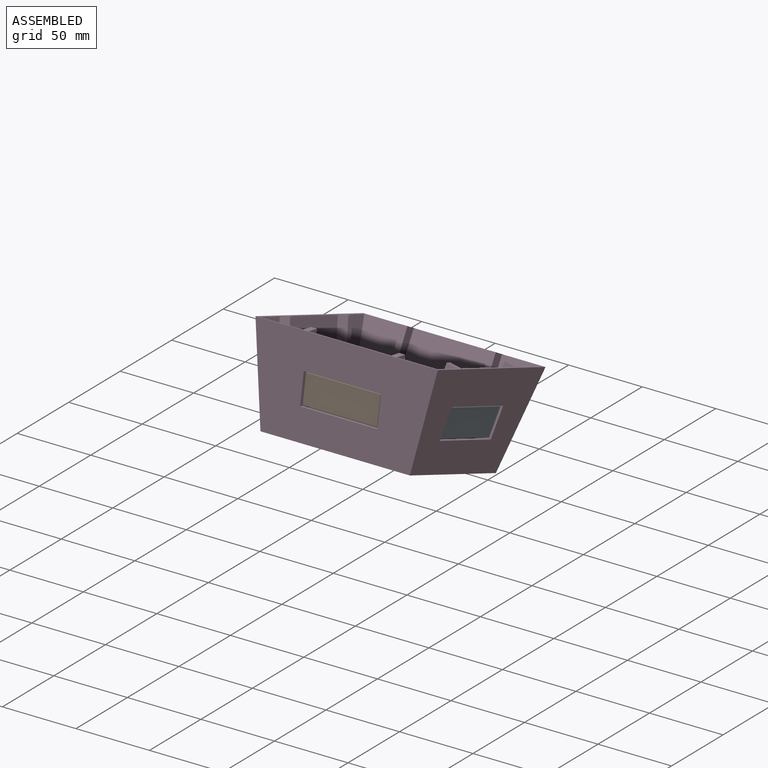
[diagram: assembled view]
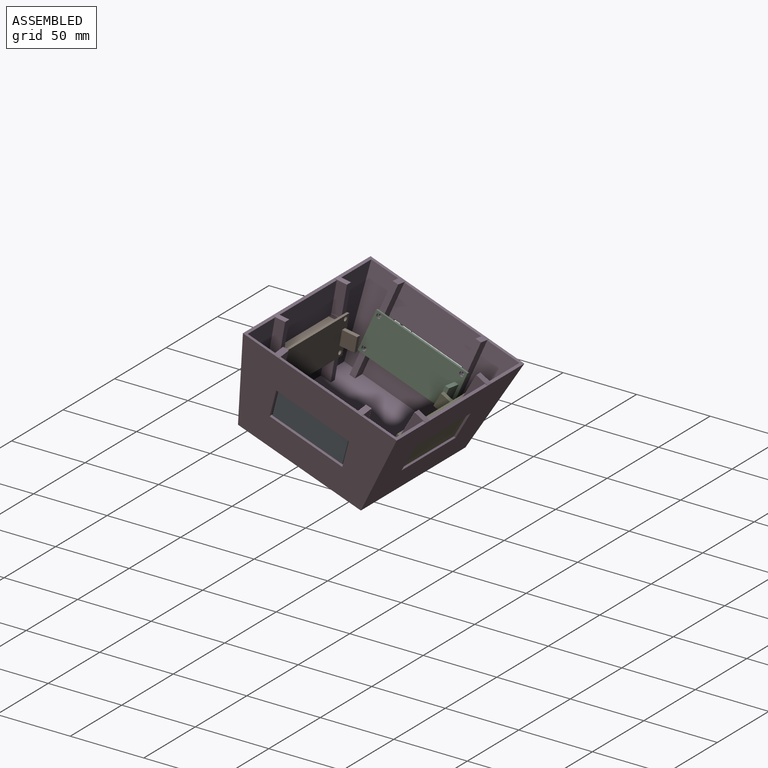
[diagram: assembled view, second angle]
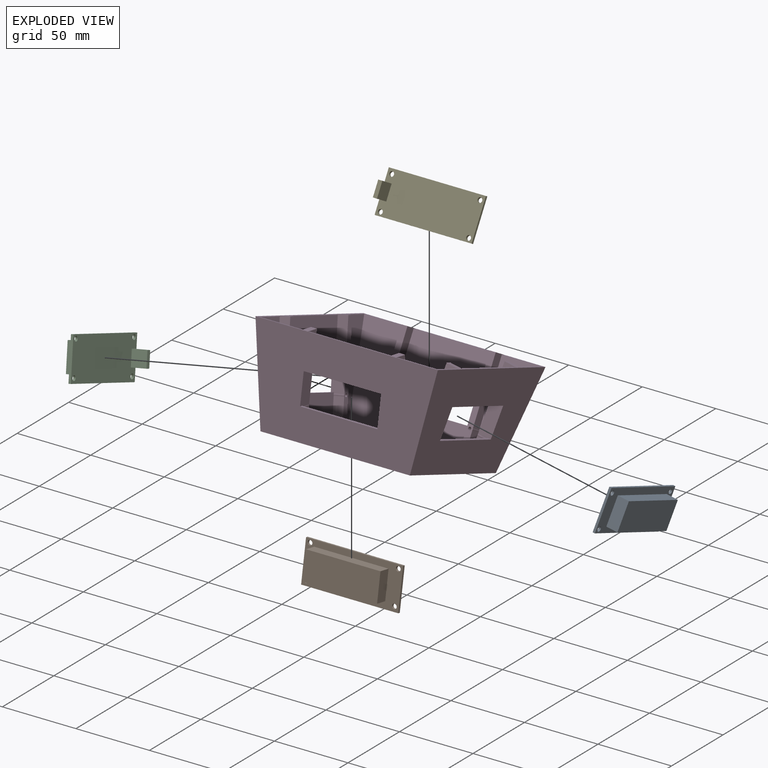
[diagram: exploded view]
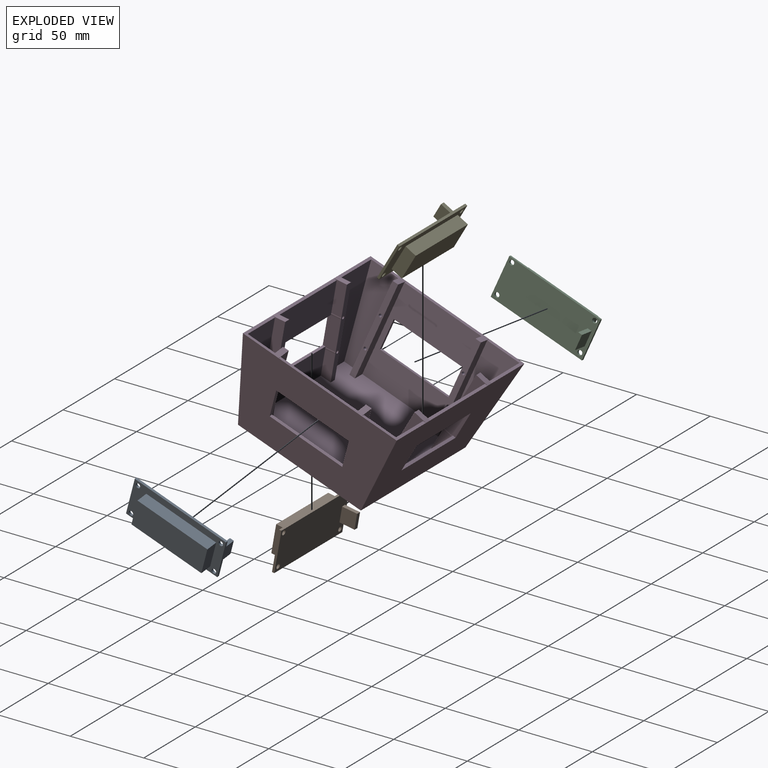
[diagram: exploded view, second angle]
ASSEMBLY  parts=5 mates=4
PART A: 20 faces, bbox 66x27.7x20 mm
  f0: plane 66x27.7mm, normal (0,0,-1), area 1766.9mm2, adj f6,f7,f8,f9,f10,f11,f12,f13
  f1: plane 50.6x8mm, normal (0,1,0), area 404.8mm2, adj f2,f4,f5,f14
  f2: plane 19x8mm, normal (-1,0,0), area 152mm2, adj f1,f3,f5,f14
  f3: plane 50.6x8mm, normal (0,-1,0), area 404.8mm2, adj f2,f4,f5,f14
  f4: plane 19x8mm, normal (1,0,0), area 152mm2, adj f1,f3,f5,f14
  f5: plane 50.6x19mm, normal (0,0,1), area 961.4mm2, adj f1,f2,f3,f4
  f6: plane 27.7x1.6mm, normal (-1,0,0), area 44.3mm2, adj f0,f7,f12,f14
  f7: plane 66x1.6mm, normal (0,-1,0), area 105.6mm2, adj f0,f6,f8,f14
  f8: plane 27.7x1.6mm, normal (1,0,0), area 44.3mm2, adj f0,f7,f12,f14
  f9: cylinder r=1.6mm len=3.2mm, axis (0,0,-1), area 16.1mm2, adj f0,f14
  f10: cylinder r=1.6mm len=3.2mm, axis (0,0,-1), area 16.1mm2, adj f0,f14
  f11: cylinder r=1.6mm len=3.2mm, axis (0,0,-1), area 16.1mm2, adj f0,f14
  f12: plane 66x1.6mm, normal (0,1,0), area 105.6mm2, adj f0,f6,f8,f14
  f13: cylinder r=1.6mm len=3.2mm, axis (0,0,-1), area 16.1mm2, adj f0,f14
  f14: plane 66x27.7mm, normal (0,0,1), area 834.6mm2, adj f1,f2,f3,f4,f6,f7,f8,f9
  f15: plane 10.4x2.8mm, normal (0,1,0), area 29.1mm2, adj f0,f16,f18,f19
  f16: plane 10.4x10.4mm, normal (-1,0,0), area 108.2mm2, adj f0,f15,f17,f19
  f17: plane 10.4x2.8mm, normal (0,-1,0), area 29.1mm2, adj f0,f16,f18,f19
  f18: plane 10.4x10.4mm, normal (1,0,0), area 108.2mm2, adj f0,f15,f17,f19
  f19: plane 10.4x2.8mm, normal (0,0,-1), area 29.1mm2, adj f15,f16,f17,f18
PART B: same geometry as A
PART C: same geometry as A
PART D: 170 faces, bbox 124x111.3x65.1 mm
  f0: plane 98.24x85.54mm, normal (0,0,-1), area 8176.7mm2, adj f2,f4,f5,f8,f11,f13,f14,f16
  f1: plane 56x2.03mm, normal (0,0,-1), area 113.7mm2, adj f2,f20,f136,f148
  f2: plane 61.5x56mm, normal (-0.98,0,-0.17), area 2413.6mm2, adj f0,f1,f135,f136,f139,f140,f141,f148
  f3: plane 31.59x25.35mm, normal (0,0,-1), area 111.5mm2, adj f4,f15,f20,f25,f32,f137
  f4: plane 61.5x23.32mm, normal (-0.98,0,-0.17), area 1117.6mm2, adj f0,f3,f25,f137,f138,f143,f144,f145
  f5: plane 61.5x56mm, normal (0.98,0,-0.17), area 2413.6mm2, adj f0,f9,f104,f105,f106,f107,f108,f110
  f6: plane 111.29x63.5mm, normal (-0.98,0,0.17), area 5371.3mm2, adj f7,f9,f15,f17,f19,f21,f109,f121
  f7: plane 28.41x21.95mm, normal (0,0,-1), area 98.1mm2, adj f6,f8,f19,f23,f76,f111
  f8: plane 61.5x19.92mm, normal (0.98,0,-0.17), area 905mm2, adj f0,f7,f23,f111,f113,f117,f118,f119
  f9: plane 56x2.03mm, normal (0,0,-1), area 113.7mm2, adj f5,f6,f104,f110
  f10: plane 56x2.03mm, normal (0,0,-1), area 113.7mm2, adj f11,f19,f63,f77
  f11: plane 61.5x56mm, normal (0,0.98,-0.17), area 2413.6mm2, adj f0,f10,f63,f66,f67,f72,f73,f77
  f12: plane 31.59x21.95mm, normal (0,0,-1), area 104.6mm2, adj f13,f19,f20,f24,f64,f147
  f13: plane 61.5x29.56mm, normal (0,0.98,-0.17), area 1507.4mm2, adj f0,f12,f24,f64,f65,f69,f70,f71
  f14: plane 61.5x56mm, normal (0,-0.98,-0.17), area 2413.6mm2, adj f0,f18,f26,f27,f28,f33,f34,f39
  f15: plane 123.99x63.5mm, normal (0,0.98,0.17), area 6190.2mm2, adj f3,f6,f17,f18,f20,f21,f37,f49
  f16: plane 61.5x26.38mm, normal (0,-0.98,-0.17), area 1308.3mm2, adj f0,f17,f22,f40,f44,f45,f46,f48
  f17: plane 28.41x25.35mm, normal (0,0,-1), area 105mm2, adj f6,f15,f16,f22,f40,f103
  f18: plane 56x2.03mm, normal (0,0,-1), area 113.7mm2, adj f14,f15,f33,f39
  f19: plane 123.99x63.5mm, normal (0,-0.98,0.17), area 6190.2mm2, adj f6,f7,f10,f12,f20,f21,f68,f82
  f20: plane 111.29x63.5mm, normal (0.98,0,0.17), area 5371.3mm2, adj f1,f3,f12,f15,f19,f21,f142,f154
  f21: plane 101.6x88.9mm, normal (0,0,1), area 9032.2mm2, adj f6,f15,f19,f20
  f22: plane 61.5x23.32mm, normal (0.98,0,-0.17), area 1117.6mm2, adj f0,f16,f17,f99,f100,f101,f102,f103
  f23: plane 61.5x26.38mm, normal (0,0.98,-0.17), area 1308.3mm2, adj f0,f7,f8,f75,f76,f79,f80,f81
  f24: plane 61.5x19.92mm, normal (-0.98,0,-0.17), area 905mm2, adj f0,f12,f13,f147,f150,f151,f152,f153
  f25: plane 61.5x29.56mm, normal (0,-0.98,-0.17), area 1507.4mm2, adj f0,f3,f4,f29,f30,f31,f32,f35
  f26: cylinder r=2.1mm len=7.11mm, axis (0,0.98,0.17), area 8.9mm2, adj f14,f27,f33,f36
  f27: plane 22.15x10.58mm, normal (-1,0,0), area 148.8mm2, adj f14,f26,f28,f36
  f28: cylinder r=2.1mm len=7.11mm, axis (0,0.98,0.17), area 8.9mm2, adj f14,f27,f34,f36
  f29: cylinder r=2.1mm len=7.11mm, axis (0,0.98,0.17), area 8.9mm2, adj f25,f30,f35,f36
  f30: plane 22.15x10.58mm, normal (1,0,0), area 148.8mm2, adj f25,f29,f31,f36
  f31: cylinder r=2.1mm len=7.11mm, axis (0,0.98,0.17), area 8.9mm2, adj f25,f30,f32,f36
  f32: plane 22.65x12.64mm, normal (1,0,0), area 152.7mm2, adj f3,f25,f31,f36,f37
  f33: plane 22.65x12.64mm, normal (-1,0,0), area 152.7mm2, adj f14,f18,f26,f36,f37
  f34: plane 18.23x10.11mm, normal (-1,0,0), area 125.3mm2, adj f0,f14,f28,f36
  f35: plane 18.23x10.11mm, normal (1,0,0), area 125.3mm2, adj f0,f25,f29,f36
  f36: plane 63.06x11.12mm, normal (0,-0.98,-0.17), area 250.2mm2, adj f0,f26,f27,f28,f29,f30,f31,f32
  f37: plane 8.86x4mm, normal (0,0.17,-0.98), area 36mm2, adj f15,f32,f33,f36
  f38: plane 63.06x11.12mm, normal (0,-0.98,-0.17), area 250.2mm2, adj f0,f39,f40,f41,f42,f43,f44,f45
  f39: plane 22.65x12.64mm, normal (1,0,0), area 152.7mm2, adj f14,f18,f38,f43,f49
  f40: plane 22.65x12.64mm, normal (-1,0,0), area 152.7mm2, adj f16,f17,f38,f44,f49
  f41: cylinder r=2.1mm len=7.11mm, axis (0,0.98,0.17), area 8.9mm2, adj f14,f38,f42,f47
  f42: plane 22.15x10.58mm, normal (1,0,0), area 148.8mm2, adj f14,f38,f41,f43
  f43: cylinder r=2.1mm len=7.11mm, axis (0,0.98,0.17), area 8.9mm2, adj f14,f38,f39,f42
  f44: cylinder r=2.1mm len=7.11mm, axis (0,0.98,0.17), area 8.9mm2, adj f16,f38,f40,f45
  f45: plane 22.15x10.58mm, normal (-1,0,0), area 148.8mm2, adj f16,f38,f44,f46
  f46: cylinder r=2.1mm len=7.11mm, axis (0,0.98,0.17), area 8.9mm2, adj f16,f38,f45,f48
  f47: plane 18.23x10.11mm, normal (1,0,0), area 125.3mm2, adj f0,f14,f38,f41
  f48: plane 18.23x10.11mm, normal (-1,0,0), area 125.3mm2, adj f0,f16,f38,f46
  f49: plane 8.86x4mm, normal (0,0.17,-0.98), area 36mm2, adj f15,f38,f39,f40
  f50: plane 20.65x5.55mm, normal (1,0,0), area 41.2mm2, adj f14,f15,f51,f53
  f51: plane 52.53x1.97mm, normal (0,0.17,-0.98), area 105.1mm2, adj f14,f15,f50,f52
  f52: plane 20.65x5.55mm, normal (-1,0,0), area 41.2mm2, adj f14,f15,f51,f53
  f53: plane 52.53x1.97mm, normal (0,-0.17,0.98), area 105.1mm2, adj f14,f15,f50,f52
  f54: cylinder r=1mm len=5.27mm, axis (0,0.98,0.17), area 31.4mm2, adj f38,f55
  f55: plane 2x1.97mm, normal (0,-0.98,-0.17), area 3.1mm2, adj f54
  f56: cylinder r=1mm len=5.27mm, axis (0,0.98,0.17), area 31.4mm2, adj f38,f57
  f57: plane 2x1.97mm, normal (0,-0.98,-0.17), area 3.1mm2, adj f56
  f58: cylinder r=1mm len=5.27mm, axis (0,0.98,0.17), area 31.4mm2, adj f36,f59
  f59: plane 2x1.97mm, normal (0,-0.98,-0.17), area 3.1mm2, adj f58
  f60: cylinder r=1mm len=5.27mm, axis (0,0.98,0.17), area 31.4mm2, adj f36,f61
  f61: plane 2x1.97mm, normal (0,-0.98,-0.17), area 3.1mm2, adj f60
  f62: plane 63.06x11.12mm, normal (0,0.98,-0.17), area 250.2mm2, adj f0,f63,f64,f65,f66,f67,f68,f69
  f63: plane 22.65x12.64mm, normal (-1,0,0), area 152.7mm2, adj f10,f11,f62,f67,f68
  f64: plane 22.65x12.64mm, normal (1,0,0), area 152.7mm2, adj f12,f13,f62,f68,f69
  f65: plane 18.23x10.11mm, normal (1,0,0), area 125.3mm2, adj f0,f13,f62,f71
  f66: plane 18.23x10.11mm, normal (-1,0,0), area 125.3mm2, adj f0,f11,f62,f72
  f67: cylinder r=2.1mm len=7.11mm, axis (0,-0.98,0.17), area 8.9mm2, adj f11,f62,f63,f73
  f68: plane 8.86x4mm, normal (0,-0.17,-0.98), area 36mm2, adj f19,f62,f63,f64
  f69: cylinder r=2.1mm len=7.11mm, axis (0,-0.98,0.17), area 8.9mm2, adj f13,f62,f64,f70
  f70: plane 22.15x10.58mm, normal (1,0,0), area 148.8mm2, adj f13,f62,f69,f71
  f71: cylinder r=2.1mm len=7.11mm, axis (0,-0.98,0.17), area 8.9mm2, adj f13,f62,f65,f70
  f72: cylinder r=2.1mm len=7.11mm, axis (0,-0.98,0.17), area 8.9mm2, adj f11,f62,f66,f73
  f73: plane 22.15x10.58mm, normal (-1,0,0), area 148.8mm2, adj f11,f62,f67,f72
  f74: plane 63.06x11.12mm, normal (0,0.98,-0.17), area 250.2mm2, adj f0,f75,f76,f77,f78,f79,f80,f81
  f75: plane 18.23x10.11mm, normal (-1,0,0), area 125.3mm2, adj f0,f23,f74,f79
  f76: plane 22.65x12.64mm, normal (-1,0,0), area 152.7mm2, adj f7,f23,f74,f81,f82
  f77: plane 22.65x12.64mm, normal (1,0,0), area 152.7mm2, adj f10,f11,f74,f82,f83
  f78: plane 18.23x10.11mm, normal (1,0,0), area 125.3mm2, adj f0,f11,f74,f85
  f79: cylinder r=2.1mm len=7.11mm, axis (0,-0.98,0.17), area 8.9mm2, adj f23,f74,f75,f80
  f80: plane 22.15x10.58mm, normal (-1,0,0), area 148.8mm2, adj f23,f74,f79,f81
  f81: cylinder r=2.1mm len=7.11mm, axis (0,-0.98,0.17), area 8.9mm2, adj f23,f74,f76,f80
  f82: plane 8.86x4mm, normal (0,-0.17,-0.98), area 36mm2, adj f19,f74,f76,f77
  f83: cylinder r=2.1mm len=7.11mm, axis (0,-0.98,0.17), area 8.9mm2, adj f11,f74,f77,f84
  f84: plane 22.15x10.58mm, normal (1,0,0), area 148.8mm2, adj f11,f74,f83,f85
  f85: cylinder r=2.1mm len=7.11mm, axis (0,-0.98,0.17), area 8.9mm2, adj f11,f74,f78,f84
  f86: plane 20.65x5.55mm, normal (1,0,0), area 41.2mm2, adj f11,f19,f87,f89
  f87: plane 52.53x1.97mm, normal (0,0.17,0.98), area 105.1mm2, adj f11,f19,f86,f88
  f88: plane 20.65x5.55mm, normal (-1,0,0), area 41.2mm2, adj f11,f19,f87,f89
  f89: plane 52.53x1.97mm, normal (0,-0.17,-0.98), area 105.1mm2, adj f11,f19,f86,f88
  f90: cylinder r=1mm len=5.27mm, axis (0,-0.98,0.17), area 31.4mm2, adj f74,f91
  f91: plane 2x1.97mm, normal (0,0.98,-0.17), area 3.1mm2, adj f90
  f92: cylinder r=1mm len=5.27mm, axis (0,-0.98,0.17), area 31.4mm2, adj f74,f93
  f93: plane 2x1.97mm, normal (0,0.98,-0.17), area 3.1mm2, adj f92
  f94: cylinder r=1mm len=5.27mm, axis (0,-0.98,0.17), area 31.4mm2, adj f62,f95
  f95: plane 2x1.97mm, normal (0,0.98,-0.17), area 3.1mm2, adj f94
  f96: cylinder r=1mm len=5.27mm, axis (0,-0.98,0.17), area 31.4mm2, adj f62,f97
  f97: plane 2x1.97mm, normal (0,0.98,-0.17), area 3.1mm2, adj f96
  f98: plane 63.06x11.12mm, normal (0.98,0,-0.17), area 250.2mm2, adj f0,f99,f100,f101,f102,f103,f104,f105
  f99: plane 18.23x10.11mm, normal (0,1,0), area 125.3mm2, adj f0,f22,f98,f100
  f100: cylinder r=2.1mm len=7.11mm, axis (-0.98,0,0.17), area 8.9mm2, adj f22,f98,f99,f101
  f101: plane 22.15x10.58mm, normal (0,1,0), area 148.8mm2, adj f22,f98,f100,f102
  f102: cylinder r=2.1mm len=7.11mm, axis (-0.98,0,0.17), area 8.9mm2, adj f22,f98,f101,f103
  f103: plane 22.65x12.64mm, normal (0,1,0), area 152.7mm2, adj f17,f22,f98,f102,f109
  f104: plane 22.65x12.64mm, normal (0,-1,0), area 152.7mm2, adj f5,f9,f98,f105,f109
  f105: cylinder r=2.1mm len=7.11mm, axis (-0.98,0,0.17), area 8.9mm2, adj f5,f98,f104,f106
  f106: plane 22.15x10.58mm, normal (0,-1,0), area 148.8mm2, adj f5,f98,f105,f107
  f107: cylinder r=2.1mm len=7.11mm, axis (-0.98,0,0.17), area 8.9mm2, adj f5,f98,f106,f108
  f108: plane 18.23x10.11mm, normal (0,-1,0), area 125.3mm2, adj f0,f5,f98,f107
  f109: plane 8.86x4mm, normal (-0.17,0,-0.98), area 36mm2, adj f6,f98,f103,f104
  f110: plane 22.65x12.64mm, normal (0,1,0), area 152.7mm2, adj f5,f9,f112,f116,f121
  f111: plane 22.65x12.64mm, normal (0,-1,0), area 152.7mm2, adj f7,f8,f112,f117,f121
  f112: plane 63.06x11.12mm, normal (0.98,0,-0.17), area 250.2mm2, adj f0,f110,f111,f113,f114,f115,f116,f117
  f113: cylinder r=2.1mm len=7.11mm, axis (-0.98,0,0.17), area 8.9mm2, adj f8,f112,f118,f119
  f114: cylinder r=2.1mm len=7.11mm, axis (-0.98,0,0.17), area 8.9mm2, adj f5,f112,f115,f120
  f115: plane 22.15x10.58mm, normal (0,1,0), area 148.8mm2, adj f5,f112,f114,f116
  f116: cylinder r=2.1mm len=7.11mm, axis (-0.98,0,0.17), area 8.9mm2, adj f5,f110,f112,f115
  f117: cylinder r=2.1mm len=7.11mm, axis (-0.98,0,0.17), area 8.9mm2, adj f8,f111,f112,f118
  f118: plane 22.15x10.58mm, normal (0,-1,0), area 148.8mm2, adj f8,f112,f113,f117
  f119: plane 18.23x10.11mm, normal (0,-1,0), area 125.3mm2, adj f0,f8,f112,f113
  f120: plane 18.23x10.11mm, normal (0,1,0), area 125.3mm2, adj f0,f5,f112,f114
  f121: plane 8.86x4mm, normal (-0.17,0,-0.98), area 36mm2, adj f6,f110,f111,f112
  f122: plane 20.65x5.55mm, normal (0,1,0), area 41.2mm2, adj f5,f6,f123,f125
  f123: plane 52.53x1.97mm, normal (-0.17,0,-0.98), area 105.1mm2, adj f5,f6,f122,f124
  f124: plane 20.65x5.55mm, normal (0,-1,0), area 41.2mm2, adj f5,f6,f123,f125
  f125: plane 52.53x1.97mm, normal (0.17,0,0.98), area 105.1mm2, adj f5,f6,f122,f124
  f126: cylinder r=1mm len=5.27mm, axis (-0.98,0,0.17), area 31.4mm2, adj f112,f127
  f127: plane 2x1.97mm, normal (0.98,0,-0.17), area 3.1mm2, adj f126
  f128: cylinder r=1mm len=5.27mm, axis (-0.98,0,0.17), area 31.4mm2, adj f112,f129
  f129: plane 2x1.97mm, normal (0.98,0,-0.17), area 3.1mm2, adj f128
  f130: cylinder r=1mm len=5.27mm, axis (-0.98,0,0.17), area 31.4mm2, adj f98,f131
  f131: plane 2x1.97mm, normal (0.98,0,-0.17), area 3.1mm2, adj f130
  f132: cylinder r=1mm len=5.27mm, axis (-0.98,0,0.17), area 31.4mm2, adj f98,f133
  f133: plane 2x1.97mm, normal (0.98,0,-0.17), area 3.1mm2, adj f132
  f134: plane 63.06x11.12mm, normal (-0.98,0,-0.17), area 250.2mm2, adj f0,f135,f136,f137,f138,f139,f140,f141
  f135: plane 18.23x10.11mm, normal (0,-1,0), area 125.3mm2, adj f0,f2,f134,f139
  f136: plane 22.65x12.64mm, normal (0,-1,0), area 152.7mm2, adj f1,f2,f134,f141,f142
  f137: plane 22.65x12.64mm, normal (0,1,0), area 152.7mm2, adj f3,f4,f134,f142,f143
  f138: plane 18.23x10.11mm, normal (0,1,0), area 125.3mm2, adj f0,f4,f134,f145
  f139: cylinder r=2.1mm len=7.11mm, axis (0.98,0,0.17), area 8.9mm2, adj f2,f134,f135,f140
  f140: plane 22.15x10.58mm, normal (0,-1,0), area 148.8mm2, adj f2,f134,f139,f141
  f141: cylinder r=2.1mm len=7.11mm, axis (0.98,0,0.17), area 8.9mm2, adj f2,f134,f136,f140
  f142: plane 8.86x4mm, normal (0.17,0,-0.98), area 36mm2, adj f20,f134,f136,f137
  f143: cylinder r=2.1mm len=7.11mm, axis (0.98,0,0.17), area 8.9mm2, adj f4,f134,f137,f144
  f144: plane 22.15x10.58mm, normal (0,1,0), area 148.8mm2, adj f4,f134,f143,f145
  f145: cylinder r=2.1mm len=7.11mm, axis (0.98,0,0.17), area 8.9mm2, adj f4,f134,f138,f144
  f146: plane 63.06x11.12mm, normal (-0.98,0,-0.17), area 250.2mm2, adj f0,f147,f148,f149,f150,f151,f152,f153
  f147: plane 22.65x12.64mm, normal (0,-1,0), area 152.7mm2, adj f12,f24,f146,f153,f154
  f148: plane 22.65x12.64mm, normal (0,1,0), area 152.7mm2, adj f1,f2,f146,f154,f155
  f149: plane 18.23x10.11mm, normal (0,1,0), area 125.3mm2, adj f0,f2,f146,f157
  f150: plane 18.23x10.11mm, normal (0,-1,0), area 125.3mm2, adj f0,f24,f146,f151
  f151: cylinder r=2.1mm len=7.11mm, axis (0.98,0,0.17), area 8.9mm2, adj f24,f146,f150,f152
  f152: plane 22.15x10.58mm, normal (0,-1,0), area 148.8mm2, adj f24,f146,f151,f153
  f153: cylinder r=2.1mm len=7.11mm, axis (0.98,0,0.17), area 8.9mm2, adj f24,f146,f147,f152
  f154: plane 8.86x4mm, normal (0.17,0,-0.98), area 36mm2, adj f20,f146,f147,f148
  f155: cylinder r=2.1mm len=7.11mm, axis (0.98,0,0.17), area 8.9mm2, adj f2,f146,f148,f156
  f156: plane 22.15x10.58mm, normal (0,1,0), area 148.8mm2, adj f2,f146,f155,f157
  f157: cylinder r=2.1mm len=7.11mm, axis (0.98,0,0.17), area 8.9mm2, adj f2,f146,f149,f156
  f158: plane 20.65x5.55mm, normal (0,1,0), area 41.2mm2, adj f2,f20,f159,f161
  f159: plane 52.53x1.97mm, normal (-0.17,0,0.98), area 105.1mm2, adj f2,f20,f158,f160
  f160: plane 20.65x5.55mm, normal (0,-1,0), area 41.2mm2, adj f2,f20,f159,f161
  f161: plane 52.53x1.97mm, normal (0.17,0,-0.98), area 105.1mm2, adj f2,f20,f158,f160
  f162: cylinder r=1mm len=5.27mm, axis (0.98,0,0.17), area 31.4mm2, adj f146,f163
  f163: plane 2x1.97mm, normal (-0.98,0,-0.17), area 3.1mm2, adj f162
  f164: cylinder r=1mm len=5.27mm, axis (0.98,0,0.17), area 31.4mm2, adj f146,f165
  f165: plane 2x1.97mm, normal (-0.98,0,-0.17), area 3.1mm2, adj f164
  f166: cylinder r=1mm len=5.27mm, axis (0.98,0,0.17), area 31.4mm2, adj f134,f167
  f167: plane 2x1.97mm, normal (-0.98,0,-0.17), area 3.1mm2, adj f166
  f168: cylinder r=1mm len=5.27mm, axis (0.98,0,0.17), area 31.4mm2, adj f134,f169
  f169: plane 2x1.97mm, normal (-0.98,0,-0.17), area 3.1mm2, adj f168
PART E: same geometry as A
PLACE A rot(axis=(-0.65,0.49,-0.58),138.6deg) t=(27.44,47.11,30.37)mm
PLACE B rot(axis=(1,0,0),80deg) t=(-52.19,-26.58,27.43)mm
PLACE C rot(axis=(0.54,-0.73,-0.42),114.4deg) t=(-64.07,37.54,4.09)mm
PLACE D rot(axis=(0,0.98,-0.17),180deg) t=(30.02,-18.24,72.31)mm fixed
PLACE E rot(axis=(-1,0,0),120deg) t=(-52.19,57.05,26.75)mm
MATE fastened D.f94 <-> B.f11  axis (0,0.98,-0.17) through (-49.19,-23.78,52.52)mm
MATE fastened D.f126 <-> A.f13  axis (-0.98,0.06,0.16) through (28.46,-13.26,48.7)mm
MATE fastened D.f58 <-> E.f10  axis (0,-0.87,0.5) through (-49.19,56.83,23.18)mm
MATE fastened D.f166 <-> C.f11  axis (0.98,0.06,0.16) through (-70.03,43.11,28.18)mm
